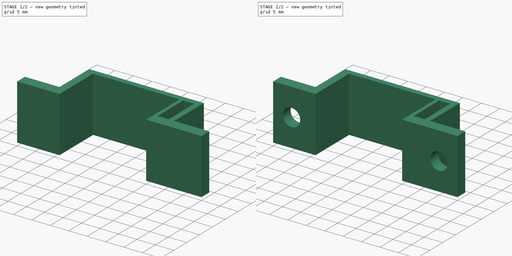
[diagram: build sequence overview — one tinted view per stage of 2, left to right]
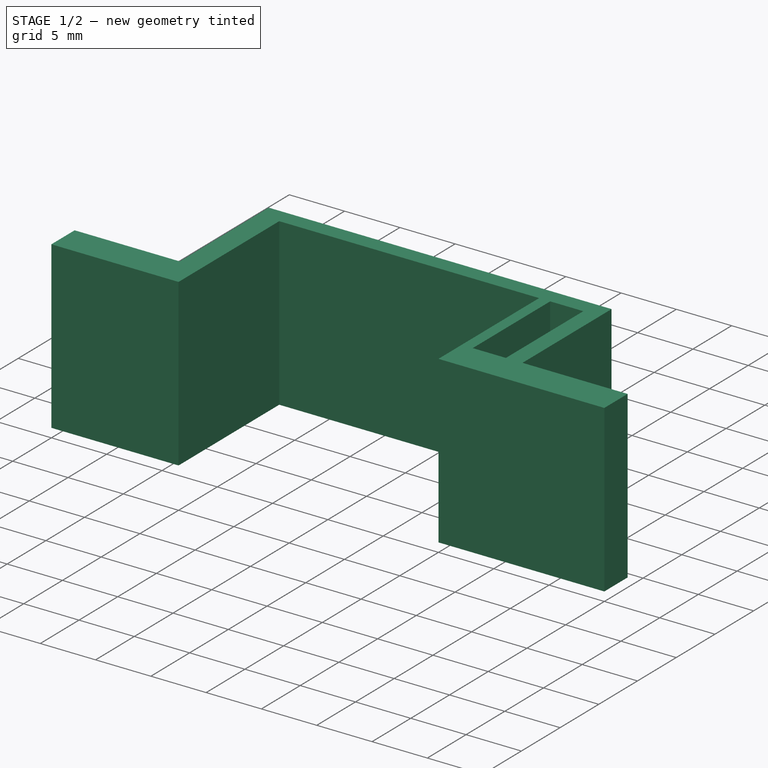
[diagram: stage 1 of 2 — iso view after this stage's code; geometry added in this stage tinted green]
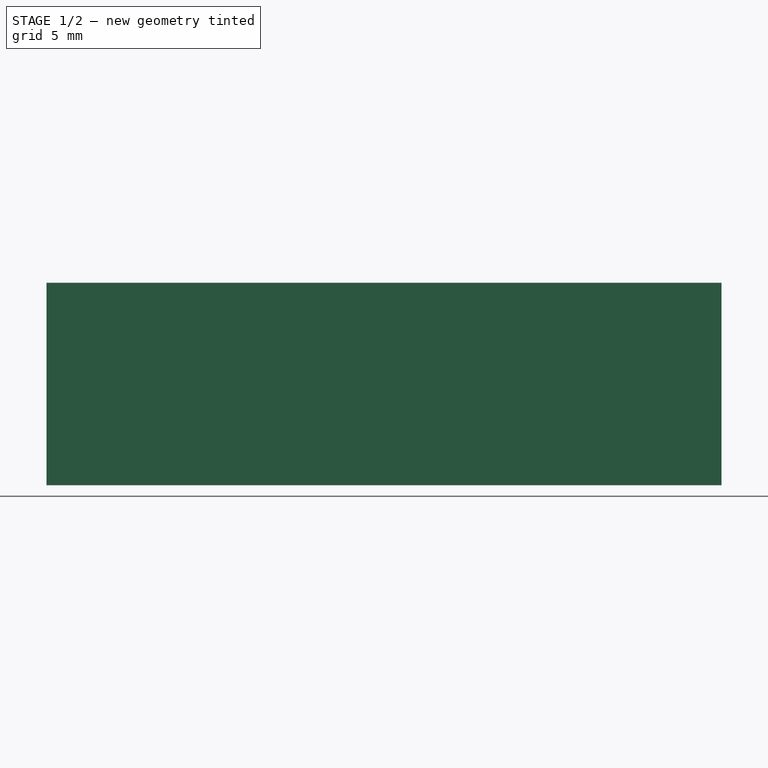
[diagram: stage 1 of 2 — front view after this stage's code; geometry added in this stage tinted green]
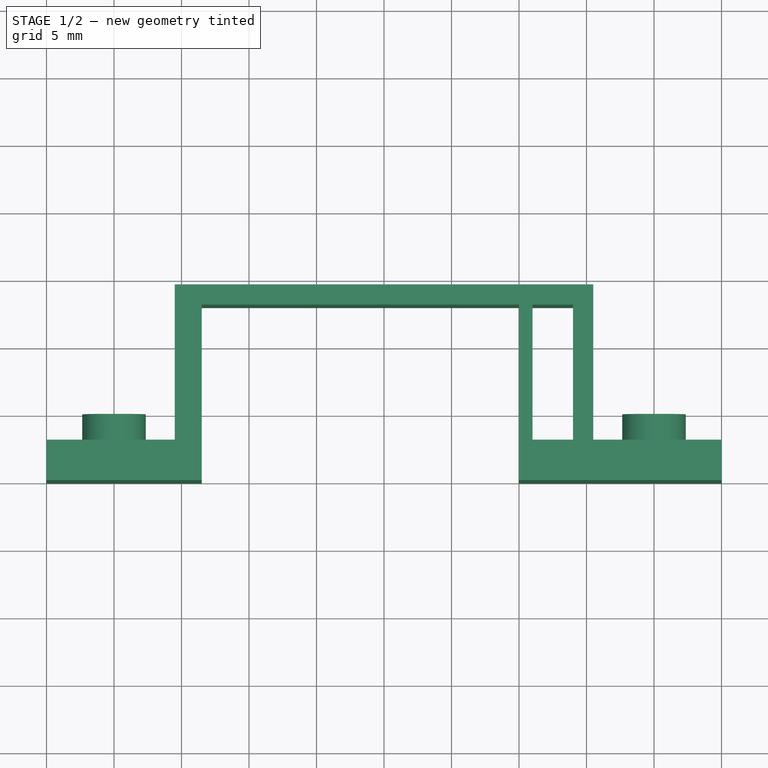
[diagram: stage 1 of 2 — top view after this stage's code; geometry added in this stage tinted green]
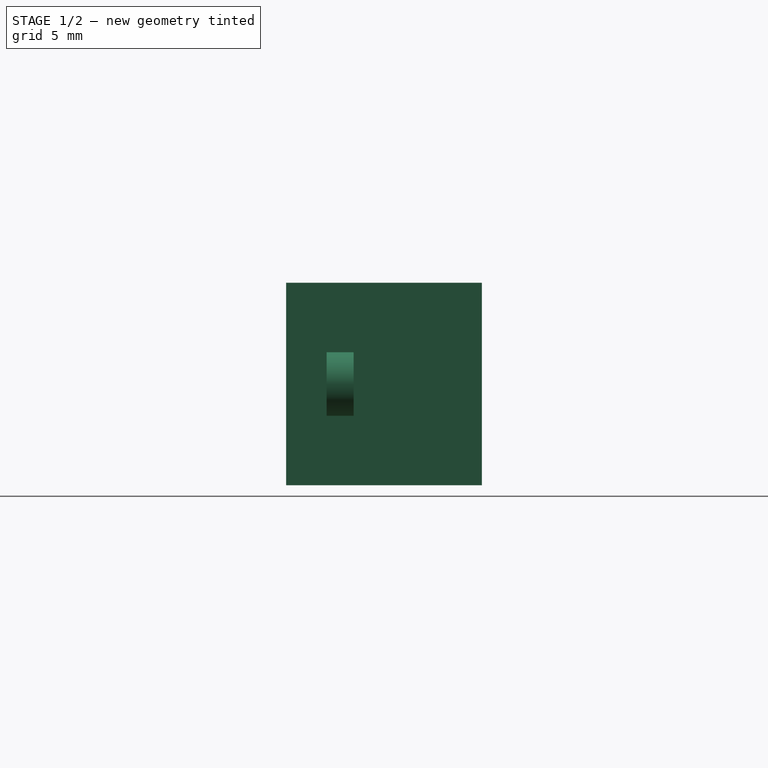
[diagram: stage 1 of 2 — right view after this stage's code; geometry added in this stage tinted green]
FCSTD DOCUMENT  (FreeCAD 0.16R6698 (Git))
Label: ar6260-holder
License: All rights reserved
LicenseURL: http://en.wikipedia.org/wiki/All_rights_reserved
objects: Sketcher::SketchObject×2, Part::Extrusion×2, Part::Cut×1
note: 5 computed .brp shape members not serialized (recipe doc carries the construction recipe); baked Part::Feature solids carry a one-line shape summary decoded from their .brp

FEATURE [Sketcher::SketchObject] Sketch
  sketch-geometry (16):
    g0: LineSegment StartX=-25 StartY=0 StartZ=0 EndX=-13.5 EndY=0 EndZ=0
    g1: LineSegment StartX=-13.5 StartY=13 StartZ=0 EndX=10 EndY=13 EndZ=0
    g2: LineSegment StartX=10 StartY=13 StartZ=0 EndX=10 EndY=0 EndZ=0
    g3: LineSegment StartX=10 StartY=0 StartZ=0 EndX=25 EndY=0 EndZ=0
    g4: LineSegment StartX=25 StartY=0 StartZ=0 EndX=25 EndY=3 EndZ=0
    g5: LineSegment StartX=25 StartY=3 StartZ=0 EndX=15.5 EndY=3 EndZ=0
    g6: LineSegment StartX=15.5 StartY=3 StartZ=0 EndX=15.5 EndY=14.5 EndZ=0
    g7: LineSegment StartX=15.5 StartY=14.5 StartZ=0 EndX=-15.5 EndY=14.5 EndZ=0
    g8: LineSegment StartX=-15.5 StartY=14.5 StartZ=0 EndX=-15.5 EndY=3 EndZ=0
    g9: LineSegment StartX=-15.5 StartY=3 StartZ=0 EndX=-25 EndY=3 EndZ=0
    g10: LineSegment StartX=-25 StartY=3 StartZ=0 EndX=-25 EndY=0 EndZ=0
    g11: LineSegment StartX=-13.5 StartY=0 StartZ=0 EndX=-13.5 EndY=13 EndZ=0
    g12: LineSegment StartX=11 StartY=13 StartZ=0 EndX=14 EndY=13 EndZ=0
    g13: LineSegment StartX=14 StartY=13 StartZ=0 EndX=14 EndY=3 EndZ=0
    g14: LineSegment StartX=14 StartY=3 StartZ=0 EndX=11 EndY=3 EndZ=0
    g15: LineSegment StartX=11 StartY=3 StartZ=0 EndX=11 EndY=13 EndZ=0
  constraints (48):
    c: PointOnObject(g0,g-1)
    c: Horizontal(g1)
    c: Coincident(g1,g2)
    c: PointOnObject(g2,g-1)
    c: Vertical(g2)
    c: Coincident(g2,g3)
    c: Horizontal(g3)
    c: Coincident(g3,g4)
    c: Vertical(g4)
    c: Coincident(g4,g5)
    c: Coincident(g5,g6)
    c: Vertical(g6)
    c: Coincident(g6,g7)
    c: Horizontal(g7)
    c: Coincident(g7,g8)
    c: Vertical(g8)
    c: Coincident(g8,g9)
    c: Horizontal(g9)
    c: Coincident(g9,g10)
    c: Coincident(g10,g0)
    c: Vertical(g10)
    c: Horizontal(g5)
    c: Horizontal(g0)
    c: Equal(g10,g4)
    c: DistanceX(g1,g1) = 23.5
    c: DistanceX(g7,g7) = 31
    c: DistanceY(g4,g4) = 3
    c: Coincident(g11,g0)
    c: Vertical(g11)
    c: Coincident(g11,g1)
    c: DistanceY(g11,g11) = 13
    c: DistanceY(g1,g7) = 1.5
    c: Coincident(g12,g13)
    c: Coincident(g13,g14)
    c: Coincident(g14,g15)
    c: Coincident(g15,g12)
    c: Horizontal(g12)
    c: Horizontal(g14)
    c: Vertical(g13)
    c: Vertical(g15)
    c: Symmetric(g7,g6,g-2)
    c: DistanceX(g8,g0) = 2
    c: PointOnObject(g12,g1)
    c: PointOnObject(g13,g5)
    c: DistanceX(g2,g14) = 1
    c: DistanceX(g13,g5) = 1.5
    c: Symmetric(g0,g3,g-2)
    c: DistanceX(g0,g3) = 50
FEATURE [Part::Extrusion] Extrude
  Base = -> Sketch
  Dir = (0,0,15)
  Solid = true
FEATURE [Sketcher::SketchObject] Sketch001
  Placement = pos=(0,0,0) rot=(-1,0,0;4.71239rad)
  sketch-geometry (3):
    g0: LineSegment [constr] StartX=-20 StartY=7.5 StartZ=0 EndX=20 EndY=7.5 EndZ=0
    g1: Circle CenterX=-20 CenterY=7.5 CenterZ=0 NormalX=0 NormalY=0 NormalZ=1 Radius=2.35
    g2: Circle CenterX=20 CenterY=7.5 CenterZ=0 NormalX=0 NormalY=0 NormalZ=1 Radius=2.35
  constraints (8):
    c: Horizontal(g0)
    c: Symmetric(g0,g0,g-2)
    c: DistanceX(g0,g0) = 40
    c: DistanceY(g-1,g0) = 7.5
    c: Coincident(g1,g0)
    c: Coincident(g2,g0)
    c: Radius(g1) = 2.35
    c: Equal(g1,g2)
FEATURE [Part::Extrusion] Extrude001
  Base = -> Sketch001
  Dir = (0,5,0)
  Solid = true
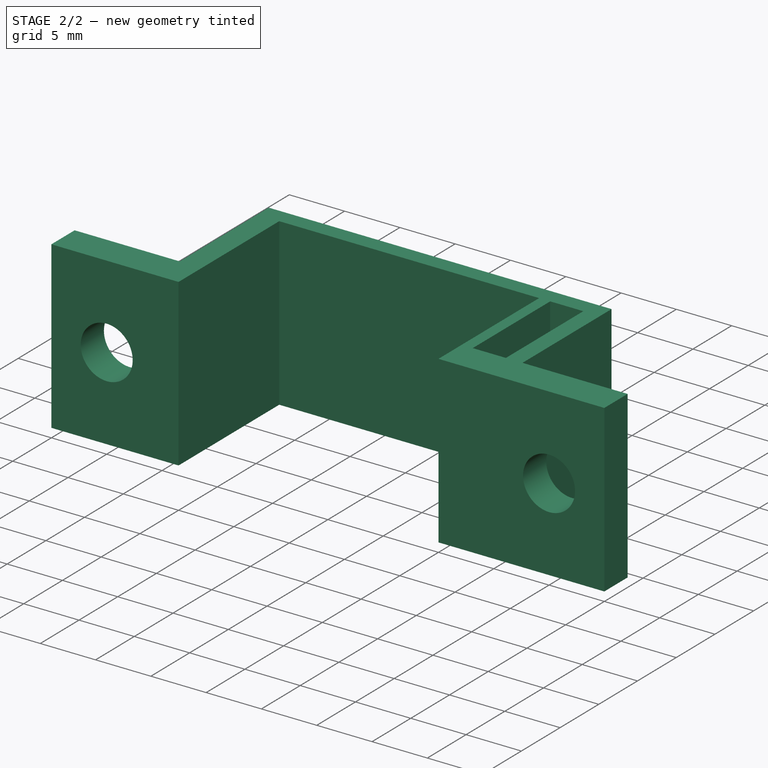
[diagram: stage 2 of 2 — iso view after this stage's code; geometry added in this stage tinted green]
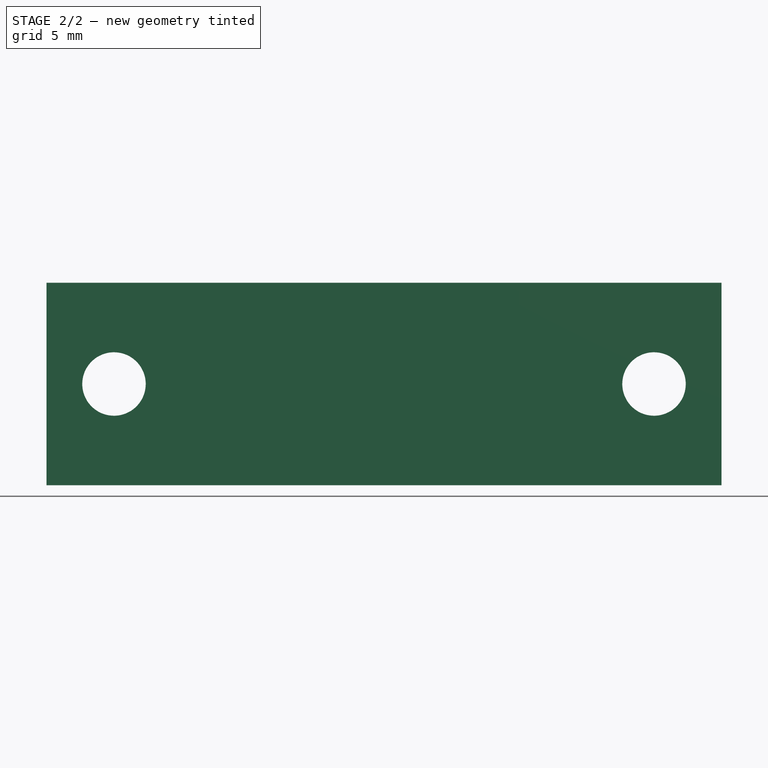
[diagram: stage 2 of 2 — front view after this stage's code; geometry added in this stage tinted green]
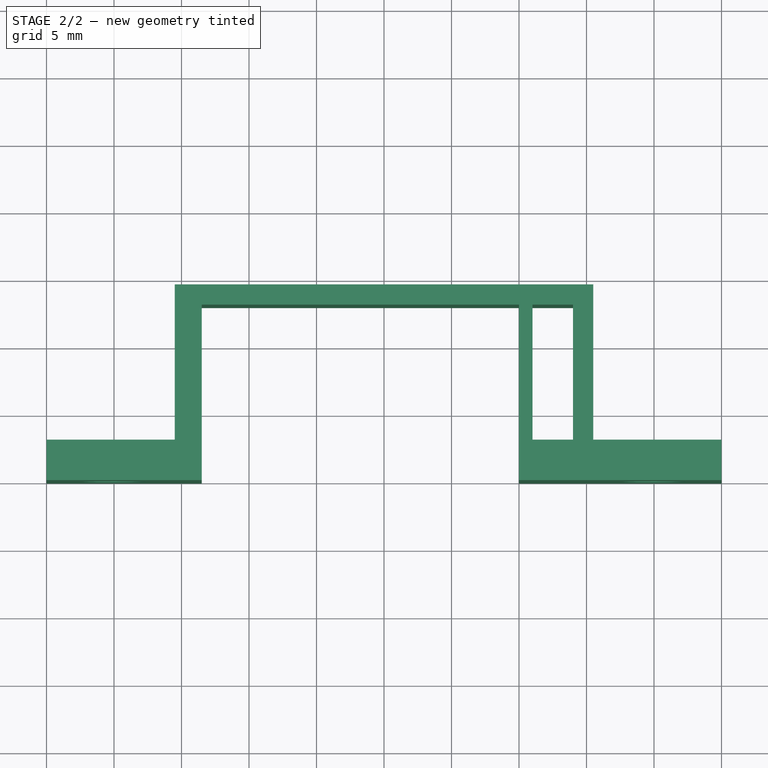
[diagram: stage 2 of 2 — top view after this stage's code; geometry added in this stage tinted green]
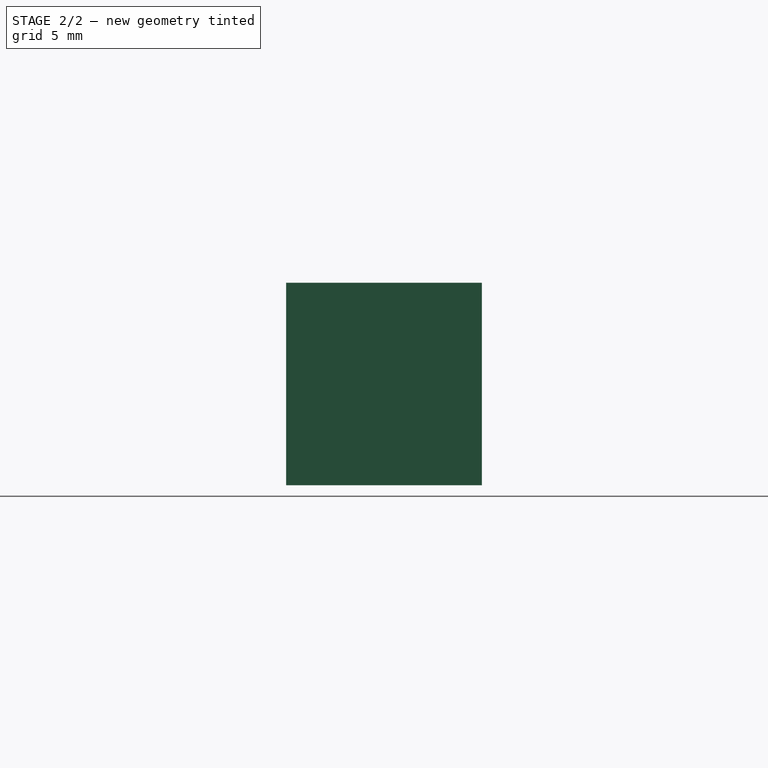
[diagram: stage 2 of 2 — right view after this stage's code; geometry added in this stage tinted green]
FEATURE [Part::Cut] Cut
  Base = -> Extrude
  Tool = -> Extrude001
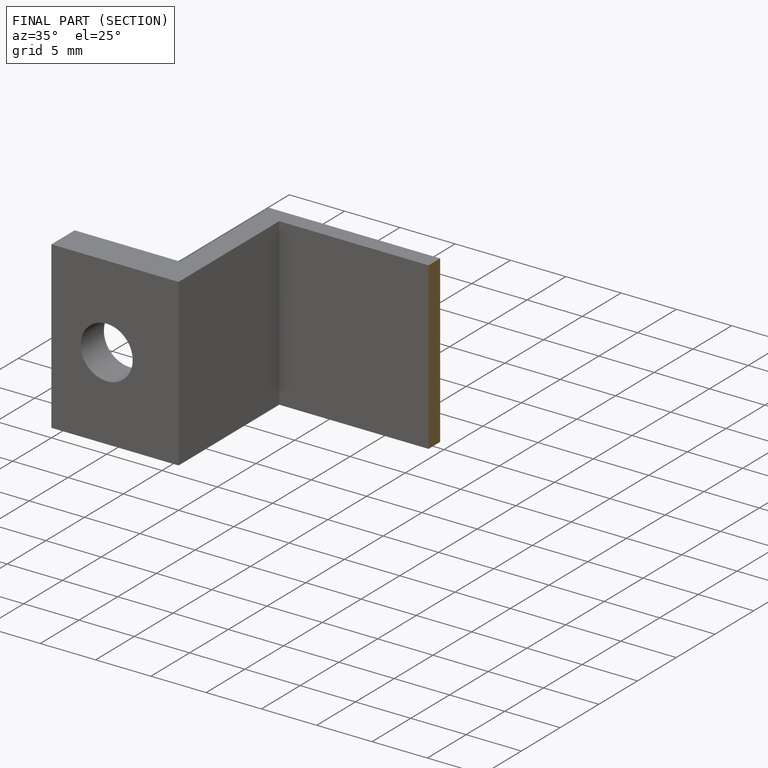
[diagram: finished part — half-section view (interior)]
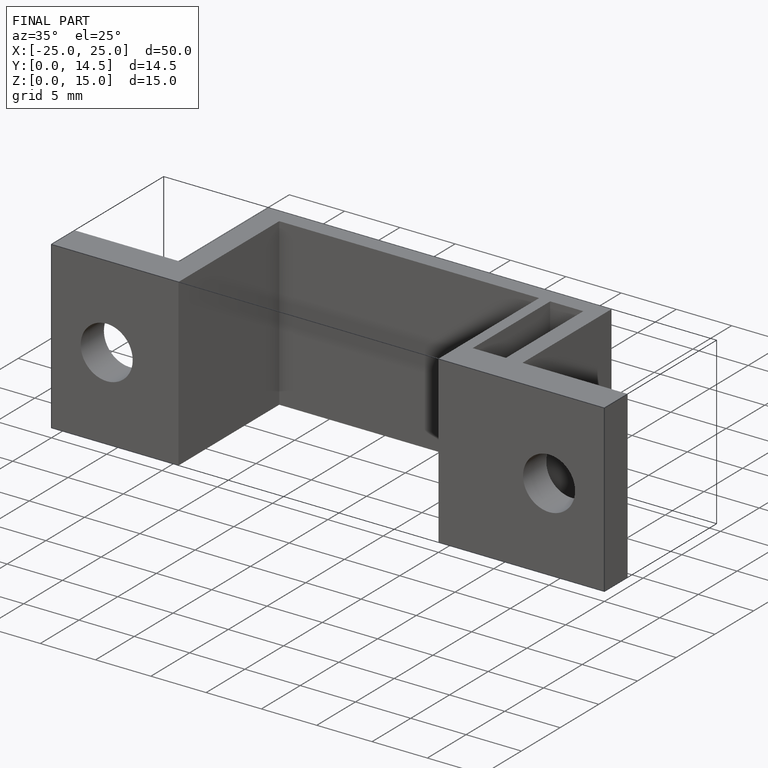
[diagram: finished part — iso view with bounding-box wireframe]
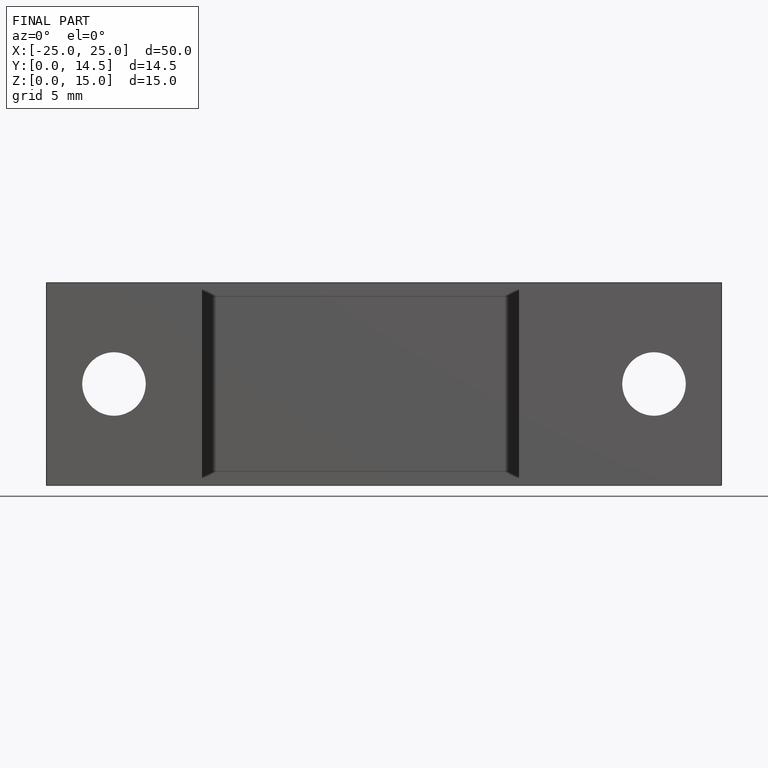
[diagram: finished part — front view with bounding-box wireframe]
